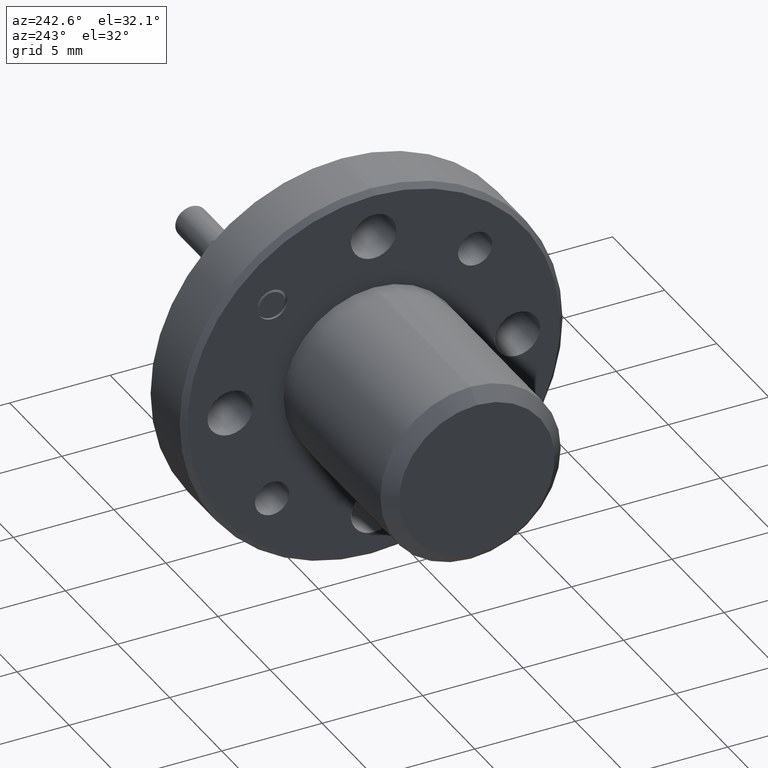
[diagram: clean part render]
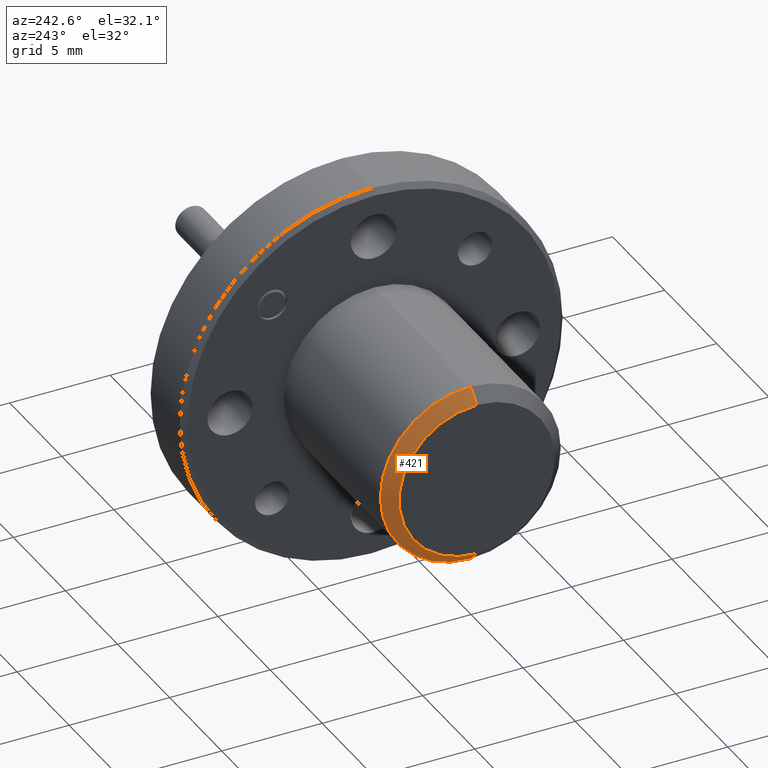
[diagram: same view with one face highlighted and labeled with its STEP entity id]
A machine part, auxiliary view. The second image highlights one B-rep face of the part: STEP entity #421.
In plain terms, the highlighted conical surface has half-angle 45 deg.
Its self-contained STEP definition (entity closure, byte-faithful):
#45 = CIRCLE ( 'NONE', #679, 0.1766920118220990700 ) ;
#104 = DIRECTION ( 'NONE',  ( 0.7071067811865452400, 8.659560562354961200E-017, 0.7071067811865497900 ) ) ;
#105 = VERTEX_POINT ( 'NONE', #1782 ) ;
#117 = ORIENTED_EDGE ( 'NONE', *, *, #970, .T. ) ;
#189 = EDGE_LOOP ( 'NONE', ( #1195, #117, #1279, #1116 ) ) ;
#199 = LINE ( 'NONE', #1550, #1860 ) ;
#246 = CARTESIAN_POINT ( 'NONE',  ( -0.1452928485509578400, 0.4701054730334652800, 0.2924554548148309300 ) ) ;
#285 = CARTESIAN_POINT ( 'NONE',  ( -0.1452928485509577500, 0.4701054730334652800, 0.6458394784590292300 ) ) ;
#326 = DIRECTION ( 'NONE',  ( 0.0000000000000000000, 0.0000000000000000000, 1.000000000000000000 ) ) ;
#421 = ADVANCED_FACE ( 'NONE', ( #1884 ), #1865, .T. ) ;
#486 = EDGE_CURVE ( 'NONE', #817, #105, #700, .T. ) ;
#492 = DIRECTION ( 'NONE',  ( -1.000000000000000000, 0.0000000000000000000, 0.0000000000000000000 ) ) ;
#593 = AXIS2_PLACEMENT_3D ( 'NONE', #950, #1890, #1440 ) ;
#679 = AXIS2_PLACEMENT_3D ( 'NONE', #1394, #1552, #740 ) ;
#700 = CIRCLE ( 'NONE', #1326, 0.1525000000000000200 ) ;
#740 = DIRECTION ( 'NONE',  ( 0.0000000000000000000, 0.0000000000000000000, -1.000000000000000000 ) ) ;
#817 = VERTEX_POINT ( 'NONE', #1559 ) ;
#872 = CARTESIAN_POINT ( 'NONE',  ( -0.1452928485509577500, 0.4701054730334652800, 0.2924554548148308700 ) ) ;
#950 = CARTESIAN_POINT ( 'NONE',  ( -0.1452928485509578400, 0.4701054730334652800, 0.4691474666369300800 ) ) ;
#970 = EDGE_CURVE ( 'NONE', #817, #1845, #199, .T. ) ;
#1116 = ORIENTED_EDGE ( 'NONE', *, *, #1754, .F. ) ;
#1141 = CARTESIAN_POINT ( 'NONE',  ( -0.1694848603730567700, 0.4701054730334652800, 0.4691474666369300800 ) ) ;
#1195 = ORIENTED_EDGE ( 'NONE', *, *, #486, .F. ) ;
#1205 = DIRECTION ( 'NONE',  ( 0.7071067811865452400, 0.0000000000000000000, -0.7071067811865497900 ) ) ;
#1239 = VECTOR ( 'NONE', #1205, 39.37007874015748100 ) ;
#1279 = ORIENTED_EDGE ( 'NONE', *, *, #1752, .F. ) ;
#1326 = AXIS2_PLACEMENT_3D ( 'NONE', #1141, #492, #326 ) ;
#1394 = CARTESIAN_POINT ( 'NONE',  ( -0.1452928485509577500, 0.4701054730334652800, 0.4691474666369300800 ) ) ;
#1440 = DIRECTION ( 'NONE',  ( 0.0000000000000000000, 0.0000000000000000000, -1.000000000000000000 ) ) ;
#1486 = VERTEX_POINT ( 'NONE', #872 ) ;
#1550 = CARTESIAN_POINT ( 'NONE',  ( -0.1452928485509578400, 0.4701054730334652800, 0.6458394784590291100 ) ) ;
#1552 = DIRECTION ( 'NONE',  ( 1.000000000000000000, -0.0000000000000000000, -0.0000000000000000000 ) ) ;
#1559 = CARTESIAN_POINT ( 'NONE',  ( -0.1694848603730567700, 0.4701054730334652800, 0.6216474666369300500 ) ) ;
#1632 = LINE ( 'NONE', #246, #1239 ) ;
#1752 = EDGE_CURVE ( 'NONE', #1486, #1845, #45, .T. ) ;
#1754 = EDGE_CURVE ( 'NONE', #105, #1486, #1632, .T. ) ;
#1782 = CARTESIAN_POINT ( 'NONE',  ( -0.1694848603730567700, 0.4701054730334652800, 0.3166474666369300500 ) ) ;
#1845 = VERTEX_POINT ( 'NONE', #285 ) ;
#1860 = VECTOR ( 'NONE', #104, 39.37007874015748100 ) ;
#1865 = CONICAL_SURFACE ( 'NONE', #593, 0.1766920118220990900, 0.7853981633974515000 ) ;
#1884 = FACE_OUTER_BOUND ( 'NONE', #189, .T. ) ;
#1890 = DIRECTION ( 'NONE',  ( 1.000000000000000000, -0.0000000000000000000, -0.0000000000000000000 ) ) ;